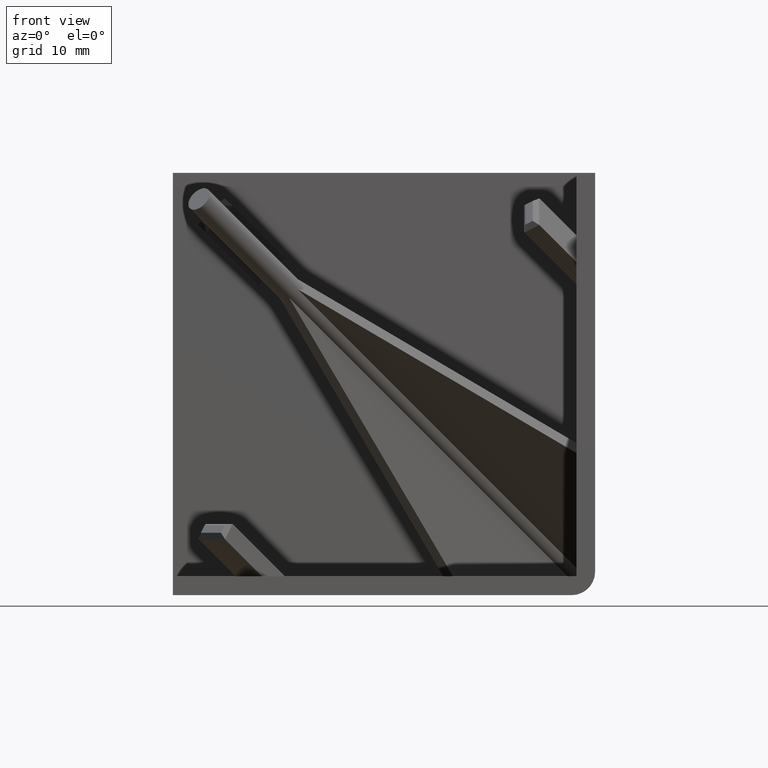
[diagram: clean part render]
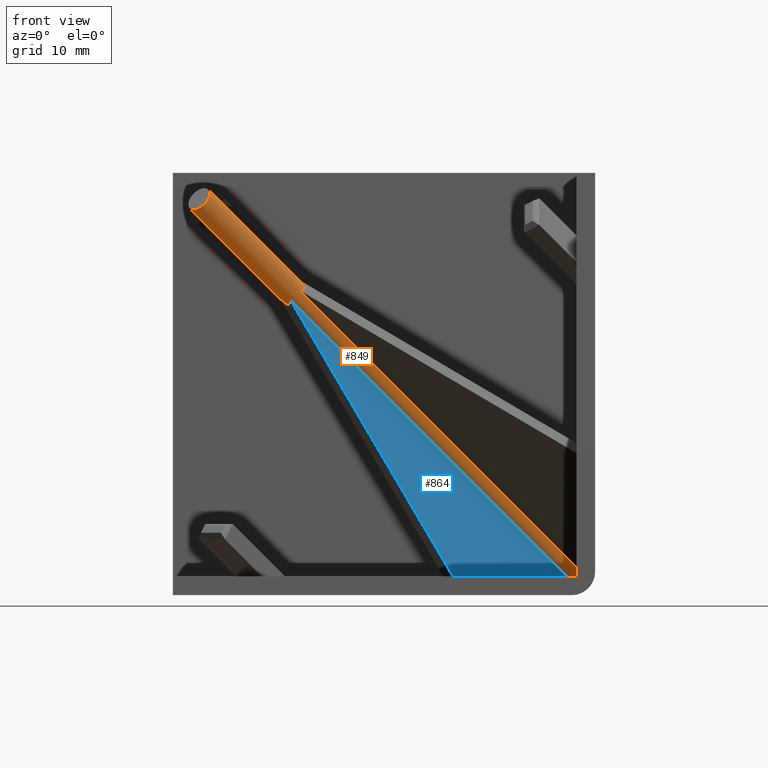
[diagram: same view with the hole feature highlighted: cylindrical wall and planar end face, labeled with their STEP entity ids]
A machine part, front view. The highlighted faces form one hole feature of diameter 2.8 mm: the cylindrical wall (entity #849, orange) and its adjacent planar end face (entity #864, blue) — they share a circular edge in the B-rep.
Wall:
#65=FACE_OUTER_BOUND('',#116,.T.);
#116=EDGE_LOOP('',(#599,#600,#601,#602,#603,#604,#605,#606,#607,#608,#609,
#610,#611,#612,#613,#614,#615,#616,#617));
#170=CIRCLE('',#928,1.4);
#177=LINE('',#1241,#283);
#178=LINE('',#1247,#284);
#179=LINE('',#1251,#285);
#180=LINE('',#1256,#286);
#181=LINE('',#1262,#287);
#182=LINE('',#1266,#288);
#183=LINE('',#1271,#289);
#283=VECTOR('',#997,1000.);
#284=VECTOR('',#1002,1000.);
#285=VECTOR('',#1005,1.4);
#286=VECTOR('',#1010,1000.);
#287=VECTOR('',#1015,1000.);
#288=VECTOR('',#1018,1000.);
#289=VECTOR('',#1023,1000.);
#389=ELLIPSE('',#924,5.40918687583893,1.40000042688381);
#390=ELLIPSE('',#925,2.42487112918362,1.39999999979648);
#391=ELLIPSE('',#926,2.42487112805241,1.39999999909692);
#392=ELLIPSE('',#927,5.40918541935006,1.40000015049565);
#393=ELLIPSE('',#929,5.40918541935006,1.40000015049565);
#394=ELLIPSE('',#930,2.42487113052945,1.40000000000576);
#395=ELLIPSE('',#931,2.42487113240126,1.40000000060693);
#396=ELLIPSE('',#932,5.40918462721993,1.40000000000014);
#397=ELLIPSE('',#933,2.42487113249768,1.40000000066487);
#398=ELLIPSE('',#934,2.4248711310375,1.40000000028682);
#399=VERTEX_POINT('',#1237);
#400=VERTEX_POINT('',#1238);
#401=VERTEX_POINT('',#1240);
#402=VERTEX_POINT('',#1242);
#403=VERTEX_POINT('',#1244);
#404=VERTEX_POINT('',#1246);
#405=VERTEX_POINT('',#1248);
#406=VERTEX_POINT('',#1250);
#407=VERTEX_POINT('',#1253);
#408=VERTEX_POINT('',#1255);
#409=VERTEX_POINT('',#1257);
#410=VERTEX_POINT('',#1259);
#411=VERTEX_POINT('',#1261);
#412=VERTEX_POINT('',#1263);
#413=VERTEX_POINT('',#1265);
#414=VERTEX_POINT('',#1267);
#415=VERTEX_POINT('',#1269);
#476=EDGE_CURVE('',#399,#400,#389,.T.);
#477=EDGE_CURVE('',#401,#400,#177,.T.);
#478=EDGE_CURVE('',#401,#402,#390,.T.);
#479=EDGE_CURVE('',#402,#403,#391,.T.);
#480=EDGE_CURVE('',#403,#404,#178,.T.);
#481=EDGE_CURVE('',#404,#405,#392,.T.);
#482=EDGE_CURVE('',#405,#406,#179,.T.);
#483=EDGE_CURVE('',#406,#406,#170,.T.);
#484=EDGE_CURVE('',#405,#407,#393,.T.);
#485=EDGE_CURVE('',#408,#407,#180,.T.);
#486=EDGE_CURVE('',#408,#409,#394,.T.);
#487=EDGE_CURVE('',#409,#410,#395,.T.);
#488=EDGE_CURVE('',#410,#411,#181,.T.);
#489=EDGE_CURVE('',#411,#412,#396,.T.);
#490=EDGE_CURVE('',#413,#412,#182,.T.);
#491=EDGE_CURVE('',#413,#414,#397,.T.);
#492=EDGE_CURVE('',#414,#415,#398,.T.);
#493=EDGE_CURVE('',#415,#399,#183,.T.);
#599=ORIENTED_EDGE('',*,*,#476,.T.);
#600=ORIENTED_EDGE('',*,*,#477,.F.);
#601=ORIENTED_EDGE('',*,*,#478,.T.);
#602=ORIENTED_EDGE('',*,*,#479,.T.);
#603=ORIENTED_EDGE('',*,*,#480,.T.);
#604=ORIENTED_EDGE('',*,*,#481,.T.);
#605=ORIENTED_EDGE('',*,*,#482,.T.);
#606=ORIENTED_EDGE('',*,*,#483,.T.);
#607=ORIENTED_EDGE('',*,*,#482,.F.);
#608=ORIENTED_EDGE('',*,*,#484,.T.);
#609=ORIENTED_EDGE('',*,*,#485,.F.);
#610=ORIENTED_EDGE('',*,*,#486,.T.);
#611=ORIENTED_EDGE('',*,*,#487,.T.);
#612=ORIENTED_EDGE('',*,*,#488,.T.);
#613=ORIENTED_EDGE('',*,*,#489,.T.);
#614=ORIENTED_EDGE('',*,*,#490,.F.);
#615=ORIENTED_EDGE('',*,*,#491,.T.);
#616=ORIENTED_EDGE('',*,*,#492,.T.);
#617=ORIENTED_EDGE('',*,*,#493,.T.);
#845=CYLINDRICAL_SURFACE('',#923,1.4);
#849=ADVANCED_FACE('',(#65),#845,.T.);
#923=AXIS2_PLACEMENT_3D('',#1236,#993,#994);
#924=AXIS2_PLACEMENT_3D('',#1239,#995,#996);
#925=AXIS2_PLACEMENT_3D('',#1243,#998,#999);
#926=AXIS2_PLACEMENT_3D('',#1245,#1000,#1001);
#927=AXIS2_PLACEMENT_3D('',#1249,#1003,#1004);
#928=AXIS2_PLACEMENT_3D('',#1252,#1006,#1007);
#929=AXIS2_PLACEMENT_3D('',#1254,#1008,#1009);
#930=AXIS2_PLACEMENT_3D('',#1258,#1011,#1012);
#931=AXIS2_PLACEMENT_3D('',#1260,#1013,#1014);
#932=AXIS2_PLACEMENT_3D('',#1264,#1016,#1017);
#933=AXIS2_PLACEMENT_3D('',#1268,#1019,#1020);
#934=AXIS2_PLACEMENT_3D('',#1270,#1021,#1022);
#993=DIRECTION('center_axis',(0.577350269189626,0.577350269189626,-0.577350269189626));
#994=DIRECTION('ref_axis',(0.,0.707106781186548,0.707106781186548));
#995=DIRECTION('center_axis',(-0.543766812655522,0.639245889234656,0.543766812660582));
#996=DIRECTION('ref_axis',(-0.452015144940112,-0.769002401229406,0.452015061306785));
#997=DIRECTION('',(-0.577350269189626,-0.577350269189626,0.577350269189626));
#998=DIRECTION('center_axis',(7.39009969140839E-10,-1.,2.12260349156046E-10));
#999=DIRECTION('ref_axis',(0.707106781092321,3.72468228189049E-10,-0.707106781280774));
#1000=DIRECTION('center_axis',(-9.33559612758882E-11,2.68139399516578E-11,
1.));
#1001=DIRECTION('ref_axis',(-0.707106780652809,-0.707106781720286,-4.70523144480839E-11));
#1002=DIRECTION('',(-0.577350269189626,-0.577350269189626,0.577350269189626));
#1003=DIRECTION('center_axis',(-0.543766812658564,-0.543766812658846,-0.639245889233546));
#1004=DIRECTION('ref_axis',(0.452015117868162,0.452015088377167,-0.76900240123033));
#1005=DIRECTION('',(-0.577350269189626,-0.577350269189626,0.577350269189626));
#1006=DIRECTION('center_axis',(0.577350269189626,0.577350269189626,-0.577350269189626));
#1007=DIRECTION('ref_axis',(0.,0.707106781186548,0.707106781186548));
#1008=DIRECTION('center_axis',(-0.543766812658564,-0.543766812658846,-0.639245889233546));
#1009=DIRECTION('ref_axis',(0.452015117868162,0.452015088377167,-0.76900240123033));
#1010=DIRECTION('',(-0.577350269189626,-0.577350269189626,0.577350269189626));
#1011=DIRECTION('center_axis',(2.67138879156283E-11,-9.30076180927915E-11,
1.));
#1012=DIRECTION('ref_axis',(0.70710678120182,0.707106781171275,4.6876746156595E-11));
#1013=DIRECTION('center_axis',(-1.,-9.31817896300468E-11,-2.67639139137123E-11));
#1014=DIRECTION('ref_axis',(-4.69645303570394E-11,0.707106781570171,-0.707106780802924));
#1015=DIRECTION('',(-0.577350269189626,-0.577350269189626,0.577350269189626));
#1016=DIRECTION('center_axis',(0.639245889233471,-0.543766812658754,0.543766812658743));
#1017=DIRECTION('ref_axis',(0.769002401230392,0.452015103122615,-0.45201510312261));
#1018=DIRECTION('',(-0.577350269189626,-0.577350269189626,0.577350269189626));
#1019=DIRECTION('center_axis',(-1.,2.68139399210218E-11,9.33559611994366E-11));
#1020=DIRECTION('ref_axis',(-4.70523145279565E-11,0.707106780786032,-0.707106781587063));
#1021=DIRECTION('center_axis',(-2.12160296971601E-10,-1.,-7.38661625649919E-10));
#1022=DIRECTION('ref_axis',(0.707106780875617,3.72292660107805E-10,-0.707106781497478));
#1023=DIRECTION('',(-0.577350269189626,-0.577350269189626,0.577350269189626));
#1236=CARTESIAN_POINT('Origin',(2.78632794954081,2.78632794954081,-2.78632794954081));
#1237=CARTESIAN_POINT('',(12.4098689779778,13.3273821156449,-11.349208806198));
#1238=CARTESIAN_POINT('',(11.3492088846085,13.3273822631232,-12.4098691042533));
#1239=CARTESIAN_POINT('Origin',(9.81495332530496,9.81495286808425,-9.81495381905579));
#1240=CARTESIAN_POINT('',(41.0218266905531,43.,-42.0824868623329));
#1241=CARTESIAN_POINT('',(1.77338345579856,3.7515567652455,-2.83404362757838));
#1242=CARTESIAN_POINT('',(41.2853571801118,43.,-43.));
#1243=CARTESIAN_POINT('Origin',(42.9999999989258,43.0000000012671,-42.9999999988334));
#1244=CARTESIAN_POINT('',(41.0218266905531,42.0824868623329,-43.));
#1245=CARTESIAN_POINT('Origin',(42.9999999973584,42.9999999984495,-42.9999999998399));
#1246=CARTESIAN_POINT('',(11.3492088139239,12.4098690087497,-13.3273821437134));
#1247=CARTESIAN_POINT('',(1.77338345579855,2.8340436275784,-3.75155676524549));
#1248=CARTESIAN_POINT('',(12.4273901415218,11.4374406478607,-13.417339635183));
#1249=CARTESIAN_POINT('Origin',(9.81495413546041,9.81495430963445,-9.81495397452377));
#1250=CARTESIAN_POINT('',(2.78632794954081,1.79637845587965,-3.77627744320198));
#1251=CARTESIAN_POINT('',(2.78632794954081,1.79637845587965,-3.77627744320198));
#1252=CARTESIAN_POINT('Origin',(2.78632794954081,2.78632794954081,-2.78632794954081));
#1253=CARTESIAN_POINT('',(12.4098689779778,11.349208806198,-13.3273821156449));
#1254=CARTESIAN_POINT('Origin',(9.81495413546041,9.81495430963445,-9.81495397452377));
#1255=CARTESIAN_POINT('',(42.0824868623329,41.0218266905531,-43.));
#1256=CARTESIAN_POINT('',(2.83404362757837,1.77338345579857,-3.7515567652455));
#1257=CARTESIAN_POINT('',(43.,41.2853571800266,-43.));
#1258=CARTESIAN_POINT('Origin',(42.9999999999838,42.9999999999416,-42.9999999998405));
#1259=CARTESIAN_POINT('',(43.,41.0218266905531,-42.0824868623329));
#1260=CARTESIAN_POINT('Origin',(42.9999999998402,43.0000000018679,-43.0000000011029));
#1261=CARTESIAN_POINT('',(13.3273821156449,11.349208806198,-12.4098689779778));
#1262=CARTESIAN_POINT('',(3.75155676524549,1.77338345579856,-2.83404362757839));
#1263=CARTESIAN_POINT('',(13.3273821156449,12.4098689779778,-11.349208806198));
#1264=CARTESIAN_POINT('Origin',(9.81495457622275,9.8149545762231,-9.81495457622314));
#1265=CARTESIAN_POINT('',(43.,42.0824868623329,-41.0218266905531));
#1266=CARTESIAN_POINT('',(3.7515567652455,2.83404362757837,-1.77338345579857));
#1267=CARTESIAN_POINT('',(43.,43.,-41.2853571800265));
#1268=CARTESIAN_POINT('Origin',(42.9999999998399,43.0000000011277,-43.000000001971));
#1269=CARTESIAN_POINT('',(42.0824868623329,43.,-41.0218266905531));
#1270=CARTESIAN_POINT('Origin',(43.000000000256,43.0000000012665,-43.0000000008212));
#1271=CARTESIAN_POINT('',(2.83404362757838,3.7515567652455,-1.77338345579856));
End face:
#33=PLANE('',#952);
#80=FACE_OUTER_BOUND('',#134,.T.);
#134=EDGE_LOOP('',(#706,#707,#708));
#180=LINE('',#1256,#286);
#190=LINE('',#1284,#296);
#231=LINE('',#1372,#337);
#286=VECTOR('',#1010,1000.);
#296=VECTOR('',#1032,1000.);
#337=VECTOR('',#1105,1000.);
#407=VERTEX_POINT('',#1253);
#408=VERTEX_POINT('',#1255);
#416=VERTEX_POINT('',#1273);
#485=EDGE_CURVE('',#408,#407,#180,.T.);
#500=EDGE_CURVE('',#416,#408,#190,.T.);
#544=EDGE_CURVE('',#407,#416,#231,.T.);
#706=ORIENTED_EDGE('',*,*,#544,.T.);
#707=ORIENTED_EDGE('',*,*,#500,.T.);
#708=ORIENTED_EDGE('',*,*,#485,.T.);
#864=ADVANCED_FACE('',(#80),#33,.T.);
#952=AXIS2_PLACEMENT_3D('',#1374,#1107,#1108);
#1010=DIRECTION('',(-0.577350269189626,-0.577350269189626,0.577350269189626));
#1032=DIRECTION('',(0.707106781186551,0.707106781186544,0.));
#1105=DIRECTION('',(0.45201510312261,0.452015103122613,-0.769002401230393));
#1107=DIRECTION('center_axis',(0.707106781186544,-0.707106781186551,-7.74269093239374E-15));
#1108=DIRECTION('ref_axis',(-0.707106781186551,-0.707106781186544,1.27742507777436E-16));
#1253=CARTESIAN_POINT('',(12.4098689779778,11.349208806198,-13.3273821156449));
#1255=CARTESIAN_POINT('',(42.0824868623329,41.0218266905531,-43.));
#1256=CARTESIAN_POINT('',(2.83404362757837,1.77338345579857,-3.7515567652455));
#1273=CARTESIAN_POINT('',(29.8512598129801,28.7905996412004,-43.));
#1284=CARTESIAN_POINT('',(45.5303300858899,44.4696699141101,-43.));
#1372=CARTESIAN_POINT('',(10.3452846621135,9.28462449033373,-9.81495457622365));
#1374=CARTESIAN_POINT('Origin',(30.8006909402703,29.7400307684907,-44.6152442952576));